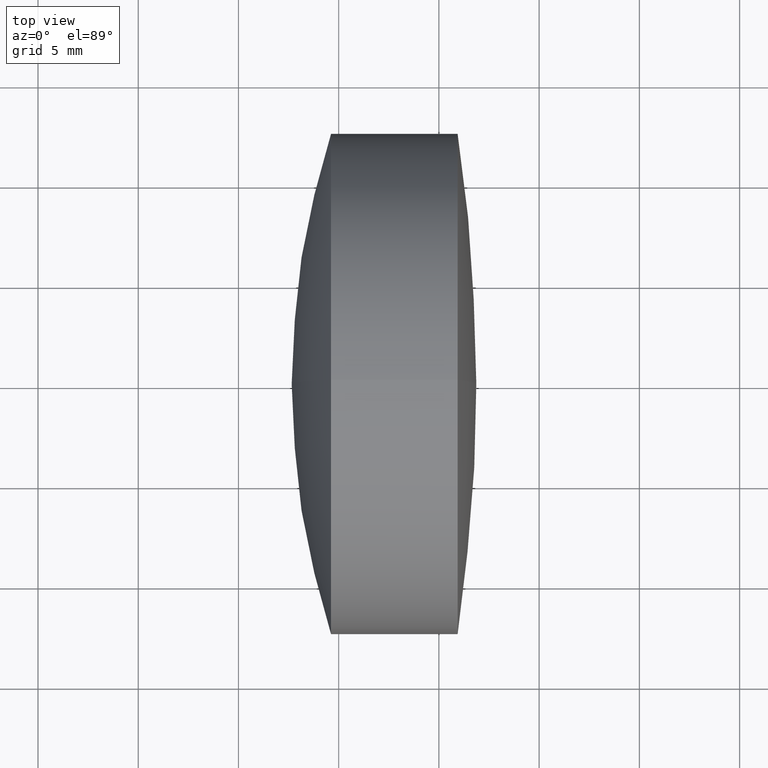
[diagram: clean part render]
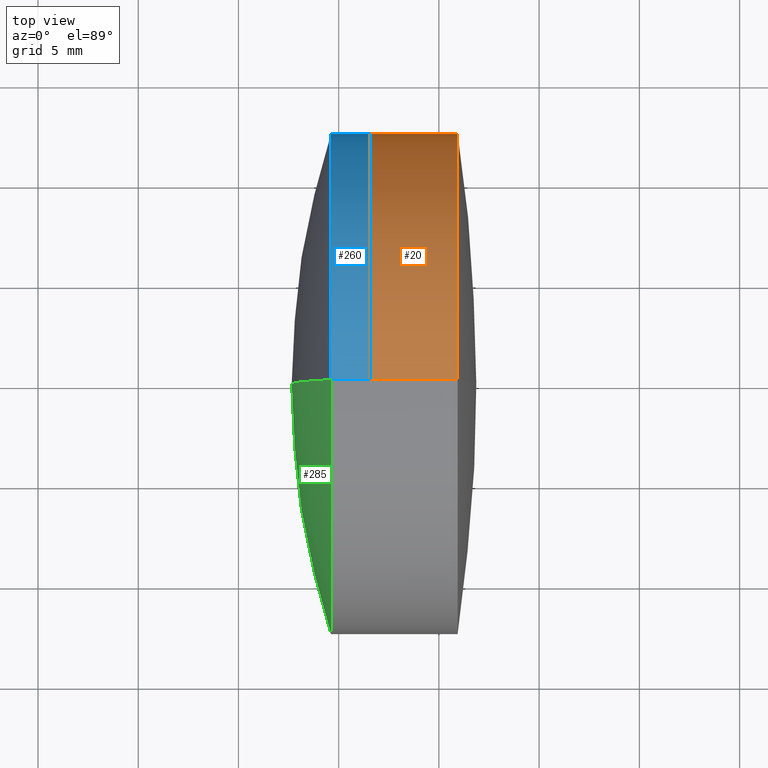
[diagram: same view with three faces highlighted in distinct colors, each labeled with its STEP entity id]
A machine part, top view with three faces highlighted in distinct colors.
Their STEP definitions:

[orange] entity #20 — the highlighted cylindrical surface (partial cylindrical patch) has radius 12.5 mm, axis along (-1, -0, -0).
#3 = ORIENTED_EDGE ( 'NONE', *, *, #323, .F. ) ;
#17 = LINE ( 'NONE', #49, #267 ) ;
#19 = EDGE_CURVE ( 'NONE', #178, #318, #17, .T. ) ;
#20 = ADVANCED_FACE ( 'NONE', ( #97 ), #197, .T. ) ;
#27 = DIRECTION ( 'NONE',  ( -1.000000000000000000, -0.0000000000000000000, -0.0000000000000000000 ) ) ;
#30 = DIRECTION ( 'NONE',  ( 0.0000000000000000000, 0.0000000000000000000, 1.000000000000000000 ) ) ;
#31 = VERTEX_POINT ( 'NONE', #159 ) ;
#49 = CARTESIAN_POINT ( 'NONE',  ( -0.5519199926577972300, 1.530808498934191900E-015, -12.50000000000000400 ) ) ;
#51 = CARTESIAN_POINT ( 'NONE',  ( -0.5519199926577972300, 0.0000000000000000000, 0.0000000000000000000 ) ) ;
#56 = CARTESIAN_POINT ( 'NONE',  ( 41.56290633338548400, 0.0000000000000000000, 0.0000000000000000000 ) ) ;
#60 = EDGE_LOOP ( 'NONE', ( #173, #277, #228, #3 ) ) ;
#61 = CARTESIAN_POINT ( 'NONE',  ( -0.5519199926577972300, 0.0000000000000000000, 12.50000000000000400 ) ) ;
#73 = LINE ( 'NONE', #61, #331 ) ;
#97 = FACE_OUTER_BOUND ( 'NONE', #60, .T. ) ;
#159 = CARTESIAN_POINT ( 'NONE',  ( 45.93383545216690300, 0.0000000000000000000, 12.49999999999999800 ) ) ;
#164 = CARTESIAN_POINT ( 'NONE',  ( 45.93383545216690300, 1.530808498934191700E-015, -12.49999999999999800 ) ) ;
#173 = ORIENTED_EDGE ( 'NONE', *, *, #210, .T. ) ;
#175 = DIRECTION ( 'NONE',  ( -1.000000000000000000, -0.0000000000000000000, -0.0000000000000000000 ) ) ;
#178 = VERTEX_POINT ( 'NONE', #164 ) ;
#197 = CYLINDRICAL_SURFACE ( 'NONE', #297, 12.50000000000000400 ) ;
#207 = DIRECTION ( 'NONE',  ( -1.000000000000000000, -0.0000000000000000000, -0.0000000000000000000 ) ) ;
#210 = EDGE_CURVE ( 'NONE', #31, #178, #262, .T. ) ;
#212 = DIRECTION ( 'NONE',  ( -1.000000000000000000, -0.0000000000000000000, -0.0000000000000000000 ) ) ;
#214 = DIRECTION ( 'NONE',  ( -1.000000000000000000, -0.0000000000000000000, -0.0000000000000000000 ) ) ;
#223 = CIRCLE ( 'NONE', #253, 12.50000000000000900 ) ;
#228 = ORIENTED_EDGE ( 'NONE', *, *, #282, .F. ) ;
#253 = AXIS2_PLACEMENT_3D ( 'NONE', #56, #212, #30 ) ;
#255 = DIRECTION ( 'NONE',  ( 0.0000000000000000000, 0.0000000000000000000, 1.000000000000000000 ) ) ;
#262 = CIRCLE ( 'NONE', #312, 12.49999999999999800 ) ;
#267 = VECTOR ( 'NONE', #207, 1000.000000000000000 ) ;
#277 = ORIENTED_EDGE ( 'NONE', *, *, #19, .T. ) ;
#282 = EDGE_CURVE ( 'NONE', #308, #318, #223, .T. ) ;
#290 = CARTESIAN_POINT ( 'NONE',  ( 41.56290633338548400, 0.0000000000000000000, 12.50000000000000900 ) ) ;
#297 = AXIS2_PLACEMENT_3D ( 'NONE', #51, #27, #255 ) ;
#299 = CARTESIAN_POINT ( 'NONE',  ( 45.93383545216690300, 0.0000000000000000000, 0.0000000000000000000 ) ) ;
#308 = VERTEX_POINT ( 'NONE', #290 ) ;
#312 = AXIS2_PLACEMENT_3D ( 'NONE', #299, #175, #332 ) ;
#317 = CARTESIAN_POINT ( 'NONE',  ( 41.56290633338548400, 1.530808498934192700E-015, -12.50000000000000900 ) ) ;
#318 = VERTEX_POINT ( 'NONE', #317 ) ;
#323 = EDGE_CURVE ( 'NONE', #31, #308, #73, .T. ) ;
#331 = VECTOR ( 'NONE', #214, 1000.000000000000000 ) ;
#332 = DIRECTION ( 'NONE',  ( 0.0000000000000000000, 0.0000000000000000000, 1.000000000000000000 ) ) ;

[blue] entity #260 — the highlighted cylindrical surface (partial cylindrical patch) has radius 12.5 mm, axis along (-1, -0, -0).
#1 = EDGE_CURVE ( 'NONE', #179, #344, #78, .T. ) ;
#6 = CARTESIAN_POINT ( 'NONE',  ( 41.56290633338549200, 1.530808498934191500E-015, -12.50000000000000000 ) ) ;
#21 = AXIS2_PLACEMENT_3D ( 'NONE', #67, #122, #124 ) ;
#24 = FACE_OUTER_BOUND ( 'NONE', #77, .T. ) ;
#29 = CYLINDRICAL_SURFACE ( 'NONE', #39, 12.50000000000000000 ) ;
#39 = AXIS2_PLACEMENT_3D ( 'NONE', #174, #137, #144 ) ;
#59 = CARTESIAN_POINT ( 'NONE',  ( 41.56290633338549200, 0.0000000000000000000, 12.50000000000000000 ) ) ;
#67 = CARTESIAN_POINT ( 'NONE',  ( 41.56290633338549200, 0.0000000000000000000, 0.0000000000000000000 ) ) ;
#77 = EDGE_LOOP ( 'NONE', ( #145, #237, #95, #303 ) ) ;
#78 = LINE ( 'NONE', #230, #320 ) ;
#82 = DIRECTION ( 'NONE',  ( -1.000000000000000000, -0.0000000000000000000, -0.0000000000000000000 ) ) ;
#83 = DIRECTION ( 'NONE',  ( 0.0000000000000000000, 0.0000000000000000000, 1.000000000000000000 ) ) ;
#88 = DIRECTION ( 'NONE',  ( -1.000000000000000000, -0.0000000000000000000, -0.0000000000000000000 ) ) ;
#95 = ORIENTED_EDGE ( 'NONE', *, *, #252, .F. ) ;
#107 = AXIS2_PLACEMENT_3D ( 'NONE', #109, #261, #83 ) ;
#109 = CARTESIAN_POINT ( 'NONE',  ( 39.61858186426729100, 0.0000000000000000000, 0.0000000000000000000 ) ) ;
#122 = DIRECTION ( 'NONE',  ( -1.000000000000000000, -0.0000000000000000000, -0.0000000000000000000 ) ) ;
#124 = DIRECTION ( 'NONE',  ( 0.0000000000000000000, 0.0000000000000000000, 1.000000000000000000 ) ) ;
#137 = DIRECTION ( 'NONE',  ( -1.000000000000000000, -0.0000000000000000000, -0.0000000000000000000 ) ) ;
#139 = CIRCLE ( 'NONE', #21, 12.50000000000000000 ) ;
#144 = DIRECTION ( 'NONE',  ( 0.0000000000000000000, 0.0000000000000000000, 1.000000000000000000 ) ) ;
#145 = ORIENTED_EDGE ( 'NONE', *, *, #199, .T. ) ;
#152 = CIRCLE ( 'NONE', #107, 12.50000000000000000 ) ;
#174 = CARTESIAN_POINT ( 'NONE',  ( -9.702612178336682500, 0.0000000000000000000, 0.0000000000000000000 ) ) ;
#179 = VERTEX_POINT ( 'NONE', #6 ) ;
#184 = VERTEX_POINT ( 'NONE', #59 ) ;
#199 = EDGE_CURVE ( 'NONE', #184, #179, #139, .T. ) ;
#208 = LINE ( 'NONE', #265, #304 ) ;
#224 = VERTEX_POINT ( 'NONE', #272 ) ;
#230 = CARTESIAN_POINT ( 'NONE',  ( -9.702612178336682500, 1.530808498934191500E-015, -12.50000000000000000 ) ) ;
#237 = ORIENTED_EDGE ( 'NONE', *, *, #1, .T. ) ;
#252 = EDGE_CURVE ( 'NONE', #224, #344, #152, .T. ) ;
#260 = ADVANCED_FACE ( 'NONE', ( #24 ), #29, .T. ) ;
#261 = DIRECTION ( 'NONE',  ( -1.000000000000000000, -0.0000000000000000000, -0.0000000000000000000 ) ) ;
#265 = CARTESIAN_POINT ( 'NONE',  ( -9.702612178336682500, 0.0000000000000000000, 12.50000000000000000 ) ) ;
#272 = CARTESIAN_POINT ( 'NONE',  ( 39.61858186426729100, -1.530808498934191700E-015, 12.50000000000000200 ) ) ;
#288 = EDGE_CURVE ( 'NONE', #184, #224, #208, .T. ) ;
#303 = ORIENTED_EDGE ( 'NONE', *, *, #288, .F. ) ;
#304 = VECTOR ( 'NONE', #88, 1000.000000000000000 ) ;
#320 = VECTOR ( 'NONE', #82, 1000.000000000000000 ) ;
#326 = CARTESIAN_POINT ( 'NONE',  ( 39.61858186426729100, 0.0000000000000000000, -12.50000000000000200 ) ) ;
#344 = VERTEX_POINT ( 'NONE', #326 ) ;

[green] entity #285 — the highlighted spherical surface has radius 40.782 mm.
#5 = DIRECTION ( 'NONE',  ( 0.0000000000000000000, 0.0000000000000000000, -1.000000000000000000 ) ) ;
#11 = AXIS2_PLACEMENT_3D ( 'NONE', #87, #14, #38 ) ;
#14 = DIRECTION ( 'NONE',  ( 0.0000000000000000000, 1.000000000000000000, -0.0000000000000000000 ) ) ;
#18 = ORIENTED_EDGE ( 'NONE', *, *, #72, .T. ) ;
#38 = DIRECTION ( 'NONE',  ( 0.0000000000000000000, 0.0000000000000000000, 1.000000000000000000 ) ) ;
#48 = DIRECTION ( 'NONE',  ( -1.000000000000000000, -0.0000000000000000000, -0.0000000000000000000 ) ) ;
#58 = AXIS2_PLACEMENT_3D ( 'NONE', #229, #48, #206 ) ;
#70 = EDGE_CURVE ( 'NONE', #224, #138, #346, .T. ) ;
#72 = EDGE_CURVE ( 'NONE', #344, #224, #256, .T. ) ;
#79 = FACE_OUTER_BOUND ( 'NONE', #311, .T. ) ;
#87 = CARTESIAN_POINT ( 'NONE',  ( 78.43766897357473100, 0.0000000000000000000, 9.088469244024832500E-017 ) ) ;
#102 = DIRECTION ( 'NONE',  ( 0.0000000000000000000, 1.224646799147353200E-016, -1.000000000000000000 ) ) ;
#111 = ORIENTED_EDGE ( 'NONE', *, *, #220, .F. ) ;
#133 = CIRCLE ( 'NONE', #11, 40.78199999999999600 ) ;
#134 = CARTESIAN_POINT ( 'NONE',  ( 78.43766897357473100, 0.0000000000000000000, 9.088469244024832500E-017 ) ) ;
#138 = VERTEX_POINT ( 'NONE', #233 ) ;
#168 = ORIENTED_EDGE ( 'NONE', *, *, #70, .T. ) ;
#189 = CARTESIAN_POINT ( 'NONE',  ( 78.43766897357473100, 0.0000000000000000000, 9.088469244024832500E-017 ) ) ;
#206 = DIRECTION ( 'NONE',  ( 0.0000000000000000000, 0.0000000000000000000, 1.000000000000000000 ) ) ;
#220 = EDGE_CURVE ( 'NONE', #344, #138, #133, .T. ) ;
#224 = VERTEX_POINT ( 'NONE', #272 ) ;
#229 = CARTESIAN_POINT ( 'NONE',  ( 39.61858186426729100, 0.0000000000000000000, 0.0000000000000000000 ) ) ;
#232 = SPHERICAL_SURFACE ( 'NONE', #271, 40.78199999999999600 ) ;
#233 = CARTESIAN_POINT ( 'NONE',  ( 37.65566897357474100, 0.0000000000000000000, -2.406292595701119300E-015 ) ) ;
#256 = CIRCLE ( 'NONE', #58, 12.50000000000000000 ) ;
#271 = AXIS2_PLACEMENT_3D ( 'NONE', #189, #287, #5 ) ;
#272 = CARTESIAN_POINT ( 'NONE',  ( 39.61858186426729100, -1.530808498934191700E-015, 12.50000000000000200 ) ) ;
#281 = DIRECTION ( 'NONE',  ( 0.0000000000000000000, -1.000000000000000000, -1.224646799147353200E-016 ) ) ;
#285 = ADVANCED_FACE ( 'NONE', ( #79 ), #232, .T. ) ;
#287 = DIRECTION ( 'NONE',  ( -0.0000000000000000000, -1.000000000000000000, -0.0000000000000000000 ) ) ;
#301 = AXIS2_PLACEMENT_3D ( 'NONE', #134, #281, #102 ) ;
#311 = EDGE_LOOP ( 'NONE', ( #18, #168, #111 ) ) ;
#326 = CARTESIAN_POINT ( 'NONE',  ( 39.61858186426729100, 0.0000000000000000000, -12.50000000000000200 ) ) ;
#344 = VERTEX_POINT ( 'NONE', #326 ) ;
#346 = CIRCLE ( 'NONE', #301, 40.78199999999999600 ) ;